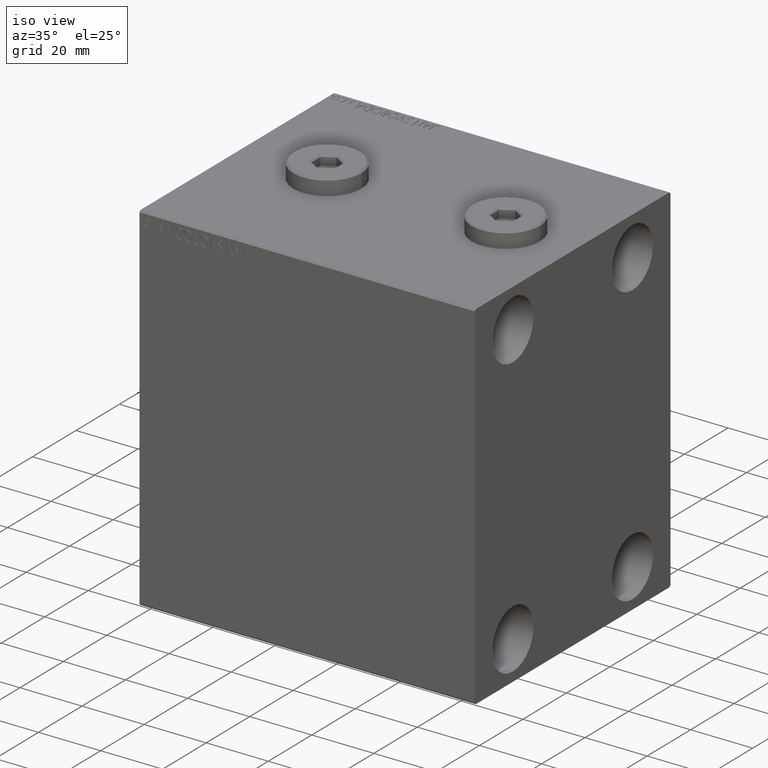
[diagram: clean part render]
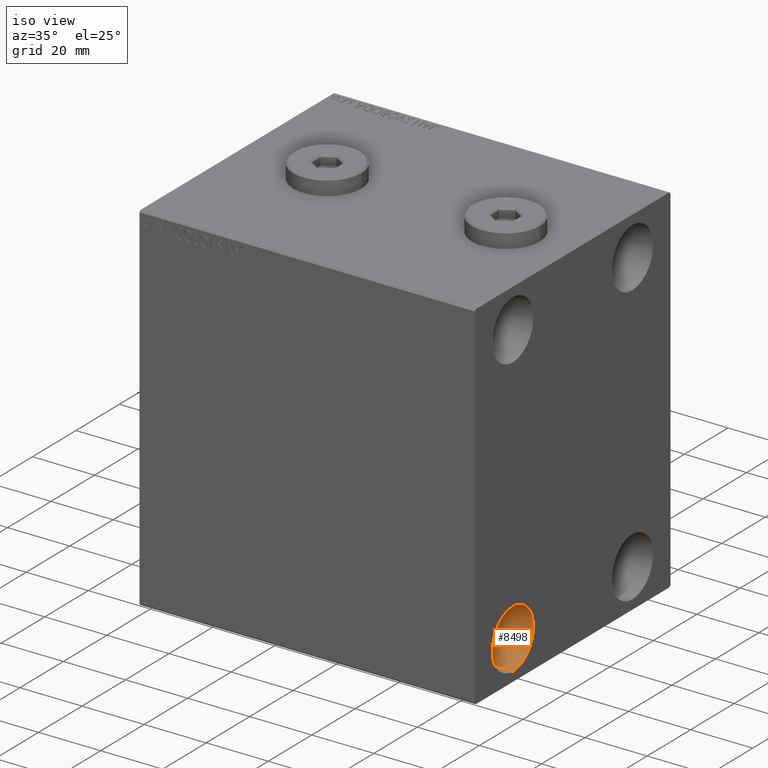
[diagram: same view with one face highlighted and labeled with its STEP entity id]
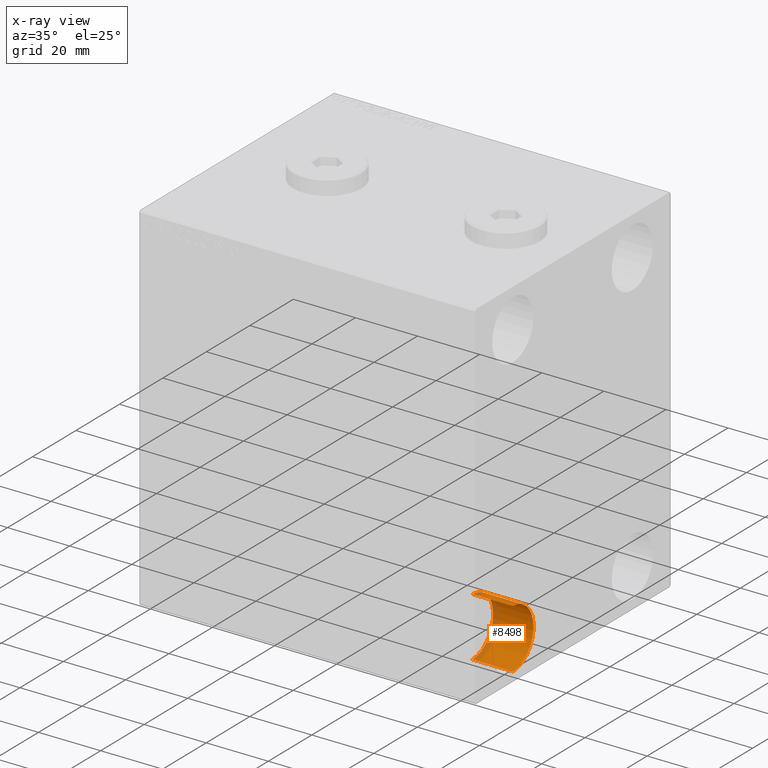
[diagram: x-ray of the same camera — body ghosted, the highlighted face saturated]
A machine part, iso view. The second image highlights one B-rep face of the part: STEP entity #8498.
The next image is the same camera in x-ray: the body ghosted, the highlighted face saturated — about 13% of this face is hidden behind the body in this view.
In plain terms, the highlighted cylindrical surface (edge-blend (fillet) strip) has radius 9.5 mm, axis along (1, 0, 0).
Its self-contained STEP definition (entity closure, byte-faithful):
#328 = VERTEX_POINT ( 'NONE', #45333 ) ;
#1883 = DIRECTION ( 'NONE',  ( 1.000000000000000000, -0.000000000000000000, -0.000000000000000000 ) ) ;
#7318 = VERTEX_POINT ( 'NONE', #29443 ) ;
#7867 = EDGE_CURVE ( 'NONE', #7318, #36726, #21513, .T. ) ;
#8312 = FACE_OUTER_BOUND ( 'NONE', #43526, .T. ) ;
#8498 = ADVANCED_FACE ( 'NONE', ( #8312 ), #29614, .F. ) ;
#9309 = DIRECTION ( 'NONE',  ( -1.000000000000000000, -0.000000000000000000, -0.000000000000000000 ) ) ;
#12527 = DIRECTION ( 'NONE',  ( 0.000000000000000000, 0.000000000000000000, 1.000000000000000000 ) ) ;
#13291 = CARTESIAN_POINT ( 'NONE',  ( 108.0000000000000000, -27.50000000000000000, -35.49999999999998579 ) ) ;
#13536 = EDGE_CURVE ( 'NONE', #15213, #328, #28044, .T. ) ;
#15213 = VERTEX_POINT ( 'NONE', #28188 ) ;
#16927 = CARTESIAN_POINT ( 'NONE',  ( 108.0000000000000000, -27.50000000000000000, -44.99999999999998579 ) ) ;
#18394 = AXIS2_PLACEMENT_3D ( 'NONE', #33287, #1883, #28949 ) ;
#18611 = ORIENTED_EDGE ( 'NONE', *, *, #39813, .F. ) ;
#20522 = CARTESIAN_POINT ( 'NONE',  ( 95.00000000000000000, -27.50000000000000000, -54.49999999999998579 ) ) ;
#20599 = DIRECTION ( 'NONE',  ( -1.000000000000000000, -0.000000000000000000, -0.000000000000000000 ) ) ;
#21513 = LINE ( 'NONE', #35472, #22725 ) ;
#22725 = VECTOR ( 'NONE', #24937, 1000.000000000000000 ) ;
#24555 = CIRCLE ( 'NONE', #31859, 9.500000000000001776 ) ;
#24937 = DIRECTION ( 'NONE',  ( 1.000000000000000000, -0.000000000000000000, -0.000000000000000000 ) ) ;
#26087 = VECTOR ( 'NONE', #41811, 1000.000000000000000 ) ;
#28044 = LINE ( 'NONE', #20522, #26087 ) ;
#28188 = CARTESIAN_POINT ( 'NONE',  ( 95.00000000000000000, -27.50000000000000000, -54.49999999999998579 ) ) ;
#28949 = DIRECTION ( 'NONE',  ( 0.000000000000000000, 0.000000000000000000, -1.000000000000000000 ) ) ;
#29443 = CARTESIAN_POINT ( 'NONE',  ( 95.00000000000000000, -27.50000000000000000, -35.49999999999998579 ) ) ;
#29614 = CYLINDRICAL_SURFACE ( 'NONE', #18394, 9.500000000000001776 ) ;
#30205 = AXIS2_PLACEMENT_3D ( 'NONE', #16927, #20599, #30901 ) ;
#30901 = DIRECTION ( 'NONE',  ( 0.000000000000000000, 0.000000000000000000, 1.000000000000000000 ) ) ;
#31859 = AXIS2_PLACEMENT_3D ( 'NONE', #37500, #9309, #12527 ) ;
#32543 = ORIENTED_EDGE ( 'NONE', *, *, #7867, .F. ) ;
#33287 = CARTESIAN_POINT ( 'NONE',  ( 95.00000000000000000, -27.50000000000000000, -44.99999999999998579 ) ) ;
#35344 = CIRCLE ( 'NONE', #30205, 9.500000000000001776 ) ;
#35472 = CARTESIAN_POINT ( 'NONE',  ( 95.00000000000000000, -27.50000000000000000, -35.49999999999998579 ) ) ;
#36715 = ORIENTED_EDGE ( 'NONE', *, *, #13536, .T. ) ;
#36726 = VERTEX_POINT ( 'NONE', #13291 ) ;
#37500 = CARTESIAN_POINT ( 'NONE',  ( 95.00000000000000000, -27.50000000000000000, -44.99999999999998579 ) ) ;
#39813 = EDGE_CURVE ( 'NONE', #36726, #328, #35344, .T. ) ;
#40852 = ORIENTED_EDGE ( 'NONE', *, *, #43470, .T. ) ;
#41811 = DIRECTION ( 'NONE',  ( 1.000000000000000000, -0.000000000000000000, -0.000000000000000000 ) ) ;
#43470 = EDGE_CURVE ( 'NONE', #7318, #15213, #24555, .T. ) ;
#43526 = EDGE_LOOP ( 'NONE', ( #32543, #40852, #36715, #18611 ) ) ;
#45333 = CARTESIAN_POINT ( 'NONE',  ( 108.0000000000000000, -27.50000000000000000, -54.49999999999998579 ) ) ;